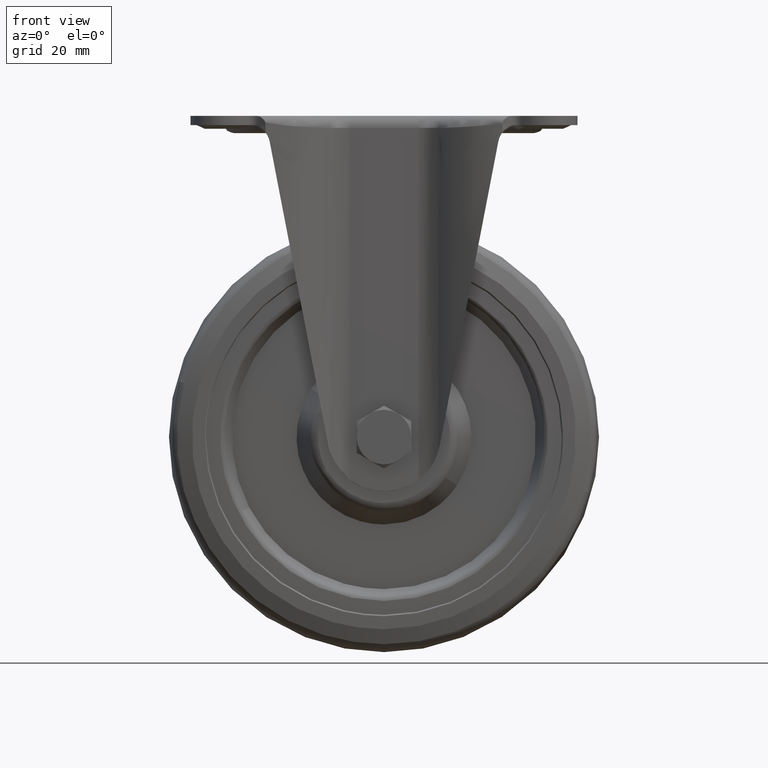
[diagram: clean part render]
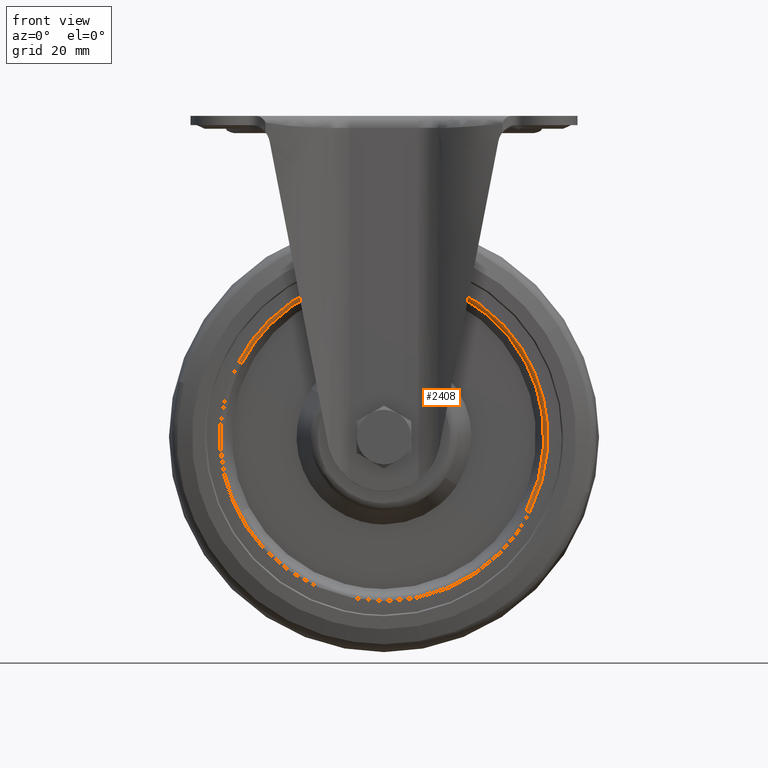
[diagram: same view with one face highlighted and labeled with its STEP entity id]
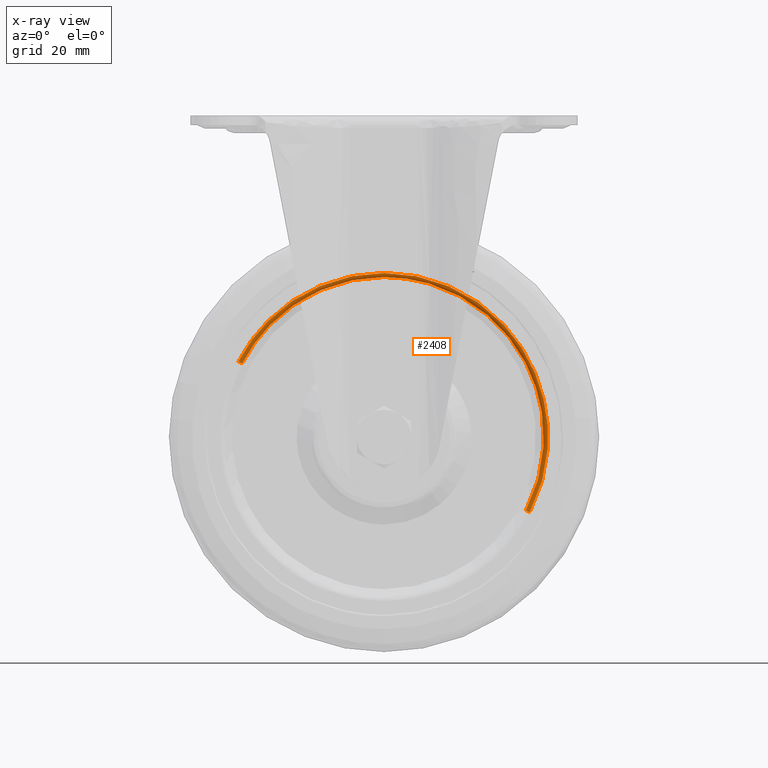
[diagram: x-ray of the same camera — body ghosted, the highlighted face saturated]
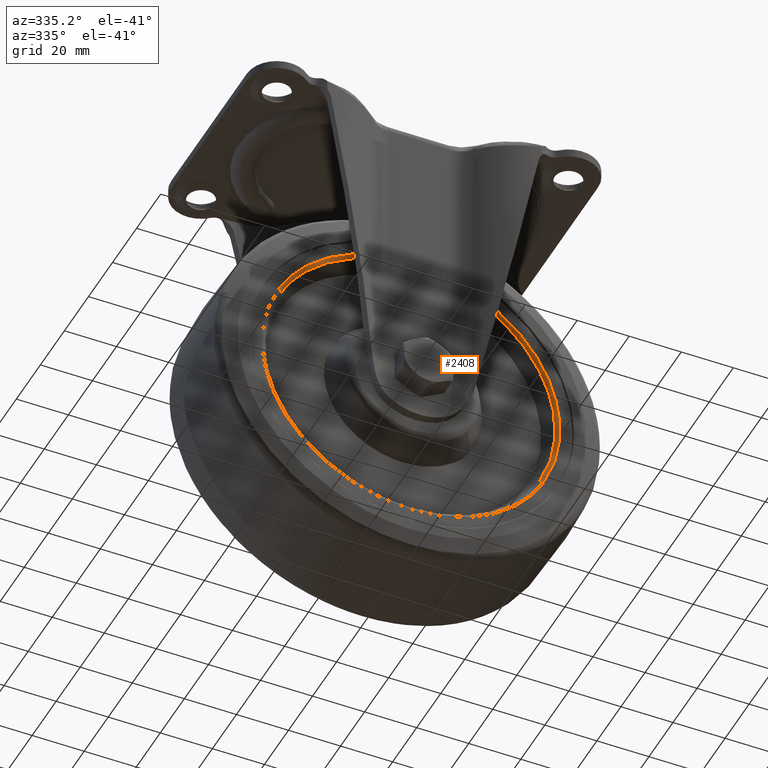
[diagram: same view with one face highlighted and labeled with its STEP entity id]
A machine part, front view. The second image highlights one B-rep face of the part: STEP entity #2408.
The next image is the same camera in x-ray: the body ghosted, the highlighted face saturated — about 0% of this face is hidden behind the body in this view.
A second angle (auxiliary view) of the same face is appended — the face is thin or edge-on in the first view.
In plain terms, the highlighted face is a freeform B-spline surface patch.
Its self-contained STEP definition (entity closure, byte-faithful):
#2240=CARTESIAN_POINT('',(0.0,-22.0,-54.815515108443208));
#2241=VERTEX_POINT('',#2240);
#2242=CARTESIAN_POINT('',(-50.787625338470953,-22.0,-85.719162404008983));
#2243=VERTEX_POINT('',#2242);
#2244=CARTESIAN_POINT('',(0.0,-22.0,-54.815515108443208));
#2245=CARTESIAN_POINT('',(-34.796057899114153,-22.000000000000007,-54.815515108533489));
#2246=CARTESIAN_POINT('',(-50.787625338470946,-22.0,-85.719162404008983));
#2254=(BOUNDED_CURVE()B_SPLINE_CURVE(2,(#2244,#2245,#2246),.UNSPECIFIED.,.F.,.U.)B_SPLINE_CURVE_WITH_KNOTS((3,3),(0.500000000000000,0.671825371003192),.UNSPECIFIED.)CURVE()GEOMETRIC_REPRESENTATION_ITEM()RATIONAL_B_SPLINE_CURVE((1.0,0.798694056052238,0.874103860136252))REPRESENTATION_ITEM(''));
#2255=EDGE_CURVE('',#2241,#2243,#2254,.T.);
#2257=CARTESIAN_POINT('',(50.787625338470939,-22.0,-138.280837595990990));
#2258=VERTEX_POINT('',#2257);
#2259=CARTESIAN_POINT('',(50.787625338470939,-22.0,-138.280837595991040));
#2260=CARTESIAN_POINT('',(57.184484891233659,-22.0,-125.918929223769770));
#2261=CARTESIAN_POINT('',(57.184484891276142,-22.0,-111.999999999854790));
#2262=CARTESIAN_POINT('',(57.184484891450637,-22.000000000000007,-54.815515108388261));
#2263=CARTESIAN_POINT('',(0.0,-22.0,-54.815515108443208));
#2271=(BOUNDED_CURVE()B_SPLINE_CURVE(2,(#2259,#2260,#2261,#2262,#2263),.UNSPECIFIED.,.F.,.U.)B_SPLINE_CURVE_WITH_KNOTS((3,2,3),(0.171825371003192,0.250000000000000,0.500000000000000),.UNSPECIFIED.)CURVE()GEOMETRIC_REPRESENTATION_ITEM()RATIONAL_B_SPLINE_CURVE((0.874103860136252,0.908412725134310,1.0,0.707106781186548,1.0))REPRESENTATION_ITEM(''));
#2272=EDGE_CURVE('',#2258,#2241,#2271,.T.);
#2307=CARTESIAN_POINT('',(50.861267555568212,-21.997822758678485,-138.318944893486250));
#2308=CARTESIAN_POINT('',(77.180212449054508,-21.997822758678492,-87.457677337918099));
#2309=CARTESIAN_POINT('',(26.318944893486282,-21.997822758678485,-61.138732444431795));
#2310=CARTESIAN_POINT('',(-24.542322662081929,-21.997822758678492,-34.819787550945520));
#2311=CARTESIAN_POINT('',(-50.861267555568212,-21.997822758678485,-85.681055106513710));
#2312=CARTESIAN_POINT('',(49.882268716995618,-22.055751144370298,-137.812346892265960));
#2313=CARTESIAN_POINT('',(75.694615609261632,-22.055751144370301,-87.930078175270467));
#2314=CARTESIAN_POINT('',(25.812346892266028,-22.055751144370298,-62.117731283004403));
#2315=CARTESIAN_POINT('',(-24.069921824729565,-22.055751144370301,-36.305384390738382));
#2316=CARTESIAN_POINT('',(-49.882268716995597,-22.055751144370298,-86.187653107733979));
#2317=CARTESIAN_POINT('',(49.497169084580008,-21.040653406770115,-137.613071166528900));
#2318=CARTESIAN_POINT('',(75.110240251108834,-21.040653406770105,-88.115902081948846));
#2319=CARTESIAN_POINT('',(25.613071166528862,-21.040653406770115,-62.502830915420020));
#2320=CARTESIAN_POINT('',(-23.884097918051122,-21.040653406770105,-36.889759748891159));
#2321=CARTESIAN_POINT('',(-49.497169084579987,-21.040653406770115,-86.386928833471146));
#2329=(BOUNDED_SURFACE()B_SPLINE_SURFACE(2,2,((#2307,#2312,#2317),(#2308,#2313,#2318),(#2309,#2314,#2319),(#2310,#2315,#2320),(#2311,#2316,#2321)),.UNSPECIFIED.,.F.,.F.,.U.)B_SPLINE_SURFACE_WITH_KNOTS((3,2,3),(3,3),(0.0,94.883739313466378,189.767478626932810),(0.0,1.988996530880205),.UNSPECIFIED.)GEOMETRIC_REPRESENTATION_ITEM()RATIONAL_B_SPLINE_SURFACE(((0.919624671933711,0.754912057767815,0.922162753752836),(0.650272841670781,0.533803435247113,0.652067536536291),(0.919624671933711,0.754912057767815,0.922162753752836),(0.650272841670781,0.533803435247113,0.652067536536291),(0.919624671933711,0.754912057767815,0.922162753752836)))REPRESENTATION_ITEM('')SURFACE());
#2330=CARTESIAN_POINT('',(49.465018372789352,-21.115853330024979,-86.250141280178639));
#2331=VERTEX_POINT('',#2330);
#2332=CARTESIAN_POINT('',(0.0,-21.115853328902801,-56.234031285529298));
#2333=VERTEX_POINT('',#2332);
#2334=CARTESIAN_POINT('',(49.465018372789345,-21.115853330024979,-86.250141280178639));
#2335=CARTESIAN_POINT('',(33.839620523245607,-21.115853329279787,-56.234031285596778));
#2336=CARTESIAN_POINT('',(0.0,-21.115853328902801,-56.234031285529298));
#2344=(BOUNDED_CURVE()B_SPLINE_CURVE(2,(#2334,#2335,#2336),.UNSPECIFIED.,.F.,.U.)B_SPLINE_CURVE_WITH_KNOTS((3,3),(0.328552124122386,0.500000000000000),.UNSPECIFIED.)CURVE()GEOMETRIC_REPRESENTATION_ITEM()RATIONAL_B_SPLINE_CURVE((0.873773849651309,0.799136319101905,1.0))REPRESENTATION_ITEM(''));
#2345=EDGE_CURVE('',#2331,#2333,#2344,.T.);
#2346=ORIENTED_EDGE('',*,*,#2345,.F.);
#2347=CARTESIAN_POINT('',(49.527789419653573,-21.115853331071790,-137.628916129724390));
#2348=VERTEX_POINT('',#2347);
#2349=CARTESIAN_POINT('',(49.527789419653573,-21.115853331071790,-137.628916129724390));
#2350=CARTESIAN_POINT('',(50.486397370948808,-21.115853331045411,-135.776489135803810));
#2351=CARTESIAN_POINT('',(52.309385498802953,-21.115853330984240,-131.709745664892890));
#2352=CARTESIAN_POINT('',(54.338357968584752,-21.115853330875439,-125.190914614527100));
#2353=CARTESIAN_POINT('',(55.499839343137182,-21.115853330755240,-118.604632716203990));
#2354=CARTESIAN_POINT('',(55.875070731868270,-21.115853330629200,-112.210628517220400));
#2355=CARTESIAN_POINT('',(55.548998122014197,-21.115853330492520,-105.673183025709090));
#2356=CARTESIAN_POINT('',(54.395734753705590,-21.115853330344631,-99.083832854893160));
#2357=CARTESIAN_POINT('',(52.359784866820092,-21.115853330184940,-92.424611738971038));
#2358=CARTESIAN_POINT('',(50.556601113900207,-21.115853330080601,-88.346876059163421));
#2359=CARTESIAN_POINT('',(49.465018372789352,-21.115853330024979,-86.250141280178639));
#2360=B_SPLINE_CURVE_WITH_KNOTS('',3,(#2349,#2350,#2351,#2352,#2353,#2354,#2355,#2356,#2357,#2358,#2359),.UNSPECIFIED.,.F.,.U.,(4,1,1,1,1,1,1,1,4),(-0.000000020154886,6.257305342733133,13.348953285591580,20.440539926956109,26.280579736064610,32.537681192665268,40.046405892149707,46.303755274159869,53.395349576785520),.UNSPECIFIED.);
#2361=EDGE_CURVE('',#2348,#2331,#2360,.T.);
#2362=ORIENTED_EDGE('',*,*,#2361,.F.);
#2363=CARTESIAN_POINT('',(50.787625338470939,-21.999999999999996,-138.280837595990960));
#2364=CARTESIAN_POINT('',(49.912990437991731,-21.999999999755108,-137.828244319154290));
#2365=CARTESIAN_POINT('',(49.527789419653573,-21.115853331071794,-137.628916129724360));
#2373=(BOUNDED_CURVE()B_SPLINE_CURVE(2,(#2363,#2364,#2365),.UNSPECIFIED.,.F.,.U.)B_SPLINE_CURVE_WITH_KNOTS((3,3),(-1.645059920166432,-0.343998810381155),.UNSPECIFIED.)CURVE()GEOMETRIC_REPRESENTATION_ITEM()RATIONAL_B_SPLINE_CURVE((0.905349034968710,0.769302953868818,0.907656598630198))REPRESENTATION_ITEM(''));
#2374=EDGE_CURVE('',#2258,#2348,#2373,.T.);
#2375=ORIENTED_EDGE('',*,*,#2374,.F.);
#2376=ORIENTED_EDGE('',*,*,#2272,.T.);
#2377=ORIENTED_EDGE('',*,*,#2255,.T.);
#2378=CARTESIAN_POINT('',(-49.527789419653587,-21.115853331071790,-86.371083870275640));
#2379=VERTEX_POINT('',#2378);
#2380=CARTESIAN_POINT('',(-50.787625338470946,-22.000000000000004,-85.719162404008983));
#2381=CARTESIAN_POINT('',(-49.912990437991738,-21.999999999755115,-86.171755680845635));
#2382=CARTESIAN_POINT('',(-49.527789419653587,-21.115853331071797,-86.371083870275640));
#2390=(BOUNDED_CURVE()B_SPLINE_CURVE(2,(#2380,#2381,#2382),.UNSPECIFIED.,.F.,.U.)B_SPLINE_CURVE_WITH_KNOTS((3,3),(-1.645059920166453,-0.343998810381154),.UNSPECIFIED.)CURVE()GEOMETRIC_REPRESENTATION_ITEM()RATIONAL_B_SPLINE_CURVE((0.905349034968714,0.769302953868816,0.907656598630198))REPRESENTATION_ITEM(''));
#2391=EDGE_CURVE('',#2243,#2379,#2390,.T.);
#2392=ORIENTED_EDGE('',*,*,#2391,.T.);
#2393=CARTESIAN_POINT('',(0.0,-21.115853328902801,-56.234031285529298));
#2394=CARTESIAN_POINT('',(-33.932908198869796,-21.115853329987292,-56.234031285284793));
#2395=CARTESIAN_POINT('',(-49.527789419653587,-21.115853331071783,-86.371083870275640));
#2403=(BOUNDED_CURVE()B_SPLINE_CURVE(2,(#2393,#2394,#2395),.UNSPECIFIED.,.F.,.U.)B_SPLINE_CURVE_WITH_KNOTS((3,3),(0.500000000000000,0.671825371003135),.UNSPECIFIED.)CURVE()GEOMETRIC_REPRESENTATION_ITEM()RATIONAL_B_SPLINE_CURVE((1.0,0.798694056052304,0.874103860136202))REPRESENTATION_ITEM(''));
#2404=EDGE_CURVE('',#2333,#2379,#2403,.T.);
#2405=ORIENTED_EDGE('',*,*,#2404,.F.);
#2406=EDGE_LOOP('',(#2346,#2362,#2375,#2376,#2377,#2392,#2405));
#2407=FACE_OUTER_BOUND('',#2406,.T.);
#2408=ADVANCED_FACE('',(#2407),#2329,.T.);